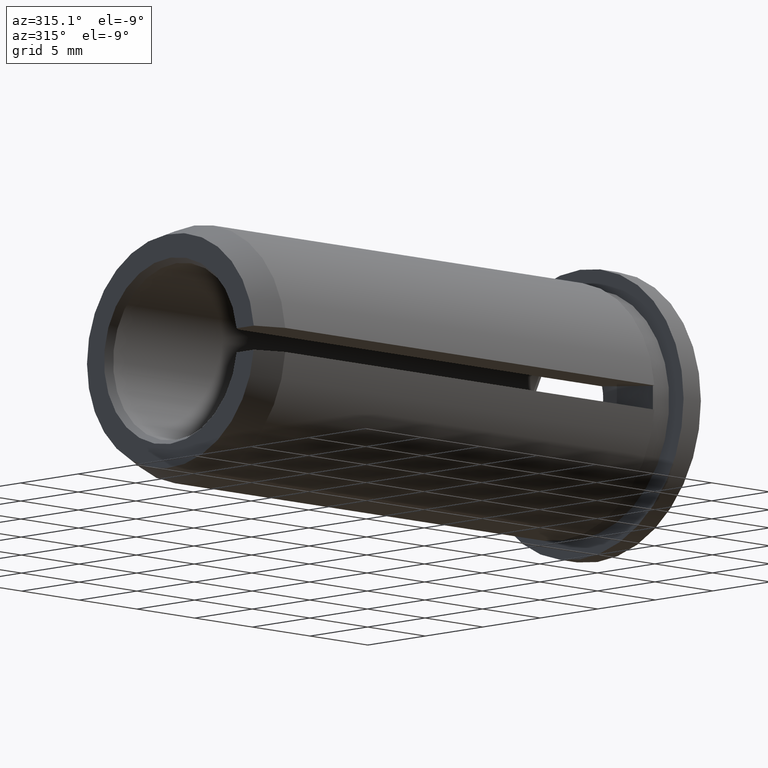
[diagram: clean part render]
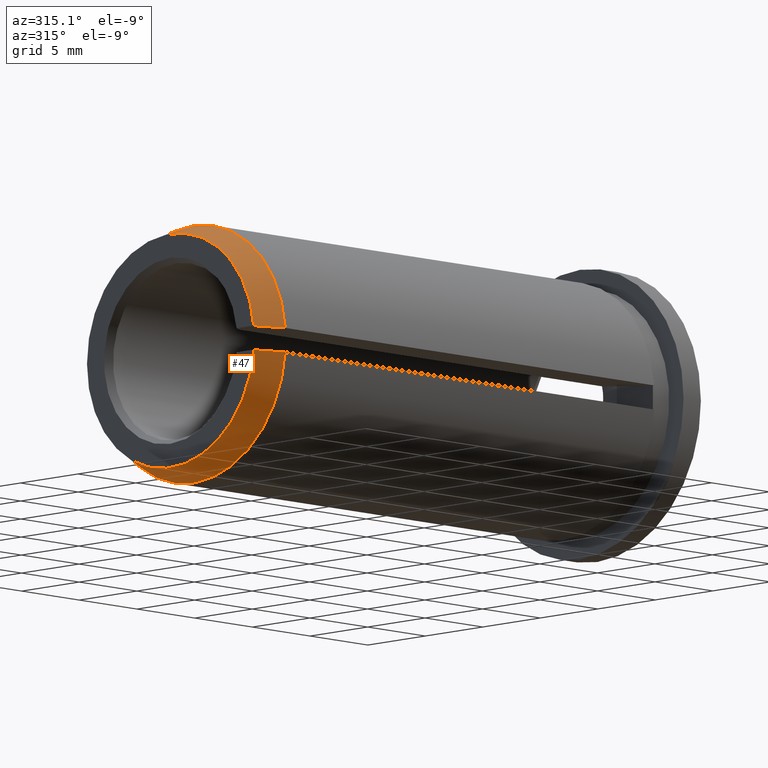
[diagram: same view with one face highlighted and labeled with its STEP entity id]
A machine part, auxiliary view. The second image highlights one B-rep face of the part: STEP entity #47.
In plain terms, the highlighted conical surface has half-angle 20 deg.
Its self-contained STEP definition (entity closure, byte-faithful):
#6 = CARTESIAN_POINT ( 'NONE',  ( -37.00000000000000000, -7.233280709968928700, -0.7500000000000000000 ) ) ;
#10 = B_SPLINE_CURVE_WITH_KNOTS ( 'NONE', 3,
 ( #270, #239, #271, #413 ),
 .UNSPECIFIED., .F., .F.,
 ( 4, 4 ),
 ( 0.009711911398750116400, 0.01184148182100318500 ),
 .UNSPECIFIED. ) ;
#13 = B_SPLINE_CURVE_WITH_KNOTS ( 'NONE', 3,
 ( #204, #72, #299, #6 ),
 .UNSPECIFIED., .F., .F.,
 ( 4, 4 ),
 ( 0.009711911398750116400, 0.01184148182100318500 ),
 .UNSPECIFIED. ) ;
#18 = AXIS2_PLACEMENT_3D ( 'NONE', #117, #309, #109 ) ;
#39 = ORIENTED_EDGE ( 'NONE', *, *, #215, .F. ) ;
#40 = CARTESIAN_POINT ( 'NONE',  ( -34.99999999999999300, 0.0000000000000000000, 0.0000000000000000000 ) ) ;
#47 = ADVANCED_FACE ( 'NONE', ( #357 ), #88, .T. ) ;
#72 = CARTESIAN_POINT ( 'NONE',  ( -35.66670156923833400, -7.721033178614087300, -0.7500000000000000000 ) ) ;
#87 = EDGE_CURVE ( 'NONE', #358, #137, #146, .T. ) ;
#88 = CONICAL_SURFACE ( 'NONE', #212, 7.999999999999996400, 0.3490658503988667300 ) ;
#105 = DIRECTION ( 'NONE',  ( 0.0000000000000000000, 0.0000000000000000000, 1.000000000000000000 ) ) ;
#109 = DIRECTION ( 'NONE',  ( 0.0000000000000000000, 0.0000000000000000000, 1.000000000000000000 ) ) ;
#113 = CARTESIAN_POINT ( 'NONE',  ( -37.00000000000000000, -7.233280709968928700, -0.7500000000000000000 ) ) ;
#117 = CARTESIAN_POINT ( 'NONE',  ( -34.99999999999999300, 0.0000000000000000000, 0.0000000000000000000 ) ) ;
#123 = CARTESIAN_POINT ( 'NONE',  ( -34.99999999999999300, -7.964766161036994400, -0.7500000000000000000 ) ) ;
#128 = EDGE_CURVE ( 'NONE', #373, #137, #13, .T. ) ;
#137 = VERTEX_POINT ( 'NONE', #113 ) ;
#139 = DIRECTION ( 'NONE',  ( -1.000000000000000000, -0.0000000000000000000, -0.0000000000000000000 ) ) ;
#146 = CIRCLE ( 'NONE', #295, 7.272059531467589500 ) ;
#199 = EDGE_CURVE ( 'NONE', #379, #373, #320, .T. ) ;
#204 = CARTESIAN_POINT ( 'NONE',  ( -34.99999999999999300, -7.964766161036994400, -0.7500000000000000000 ) ) ;
#212 = AXIS2_PLACEMENT_3D ( 'NONE', #40, #340, #374 ) ;
#215 = EDGE_CURVE ( 'NONE', #379, #358, #10, .T. ) ;
#216 = CARTESIAN_POINT ( 'NONE',  ( -34.99999999999999300, -7.964766161036994400, 0.7500000000000000000 ) ) ;
#239 = CARTESIAN_POINT ( 'NONE',  ( -35.66670156923833400, -7.721033178614087300, 0.7500000000000000000 ) ) ;
#270 = CARTESIAN_POINT ( 'NONE',  ( -34.99999999999999300, -7.964766161036994400, 0.7500000000000000000 ) ) ;
#271 = CARTESIAN_POINT ( 'NONE',  ( -36.33337186691171900, -7.477214302540265800, 0.7500000000000000000 ) ) ;
#295 = AXIS2_PLACEMENT_3D ( 'NONE', #400, #139, #105 ) ;
#296 = ORIENTED_EDGE ( 'NONE', *, *, #128, .T. ) ;
#299 = CARTESIAN_POINT ( 'NONE',  ( -36.33337186691171900, -7.477214302540265800, -0.7500000000000000000 ) ) ;
#300 = ORIENTED_EDGE ( 'NONE', *, *, #199, .T. ) ;
#309 = DIRECTION ( 'NONE',  ( -1.000000000000000000, -0.0000000000000000000, -0.0000000000000000000 ) ) ;
#320 = CIRCLE ( 'NONE', #18, 7.999999999999996400 ) ;
#337 = EDGE_LOOP ( 'NONE', ( #300, #296, #367, #39 ) ) ;
#340 = DIRECTION ( 'NONE',  ( 1.000000000000000000, 0.0000000000000000000, 0.0000000000000000000 ) ) ;
#357 = FACE_OUTER_BOUND ( 'NONE', #337, .T. ) ;
#358 = VERTEX_POINT ( 'NONE', #414 ) ;
#367 = ORIENTED_EDGE ( 'NONE', *, *, #87, .F. ) ;
#373 = VERTEX_POINT ( 'NONE', #123 ) ;
#374 = DIRECTION ( 'NONE',  ( 0.0000000000000000000, 0.0000000000000000000, -1.000000000000000000 ) ) ;
#379 = VERTEX_POINT ( 'NONE', #216 ) ;
#400 = CARTESIAN_POINT ( 'NONE',  ( -37.00000000000000000, 0.0000000000000000000, 0.0000000000000000000 ) ) ;
#413 = CARTESIAN_POINT ( 'NONE',  ( -37.00000000000000000, -7.233280709968928700, 0.7500000000000000000 ) ) ;
#414 = CARTESIAN_POINT ( 'NONE',  ( -37.00000000000000000, -7.233280709968928700, 0.7500000000000000000 ) ) ;